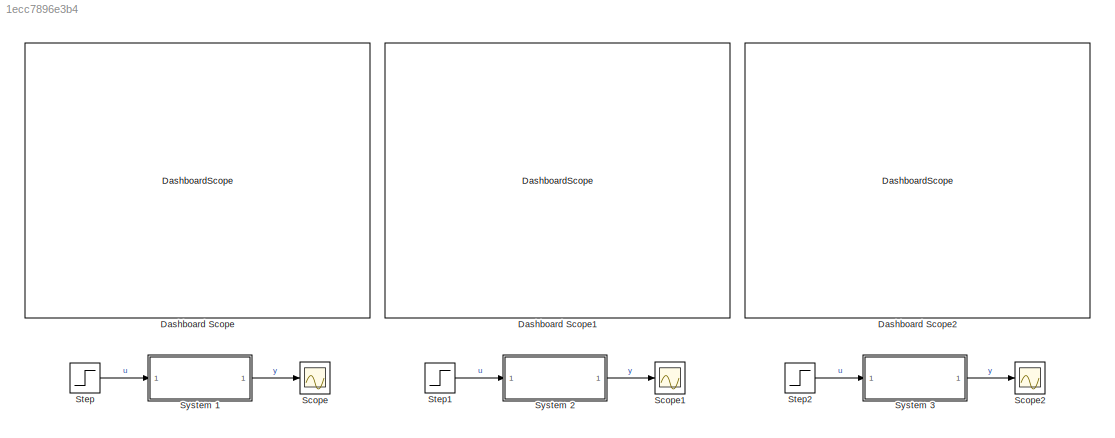
MODEL slx_1ecc7896e3b4
KIND model
CONFIG AbsTol = auto
CONFIG EnableMultiTasking = off
CONFIG FixedStep = auto
CONFIG MaxStep = auto
CONFIG MinStep = auto
CONFIG RelTol = 1e-3
CONFIG SampleTimeConstraint = Unconstrained
CONFIG SolverName = VariableStepAuto
CONFIG StartTime = 0.0
CONFIG StopTime = 10.0
BLOCK [DashboardScope] Dashboard Scope
BLOCK [DashboardScope] Dashboard Scope1
BLOCK [DashboardScope] Dashboard Scope2
BLOCK [Scope] Scope
  Floating = off
  NumInputPorts = 1
  Ports = [1]
  ScopeSpecificationString = Simulink.scopes.TimeScopeBlockCfg('CurrentConfiguration', extmgr.ConfigurationSet(extmgr.Configuration('Core','General UI',true),extmgr.Configuration('Core','Source UI',true),extmgr.Configuration('Sources','WiredSimulink',true),extmgr.Configuration('Visuals','Time Domain',true),extmgr.Configuration('Tools','Plot Navigation',true),extmgr.Configuration('Tools','Measurements',true)),'Version','2022a'...<+1ch>
BLOCK [Scope] Scope1
  Floating = off
  NumInputPorts = 1
  Ports = [1]
  ScopeSpecificationString = Simulink.scopes.TimeScopeBlockCfg('CurrentConfiguration', extmgr.ConfigurationSet(extmgr.Configuration('Core','General UI',true),extmgr.Configuration('Core','Source UI',true),extmgr.Configuration('Sources','WiredSimulink',true,'DataLoggingVariableName','ScopeData1'),extmgr.Configuration('Visuals','Time Domain',true),extmgr.Configuration('Tools','Plot Navigation',true),extmgr.Configuration('Tools',...<+40ch>
BLOCK [Scope] Scope2
  Floating = off
  NumInputPorts = 1
  Ports = [1]
  ScopeSpecificationString = Simulink.scopes.TimeScopeBlockCfg('CurrentConfiguration', extmgr.ConfigurationSet(extmgr.Configuration('Core','General UI',true),extmgr.Configuration('Core','Source UI',true),extmgr.Configuration('Sources','WiredSimulink',true,'DataLoggingVariableName','ScopeData1'),extmgr.Configuration('Visuals','Time Domain',true),extmgr.Configuration('Tools','Plot Navigation',true),extmgr.Configuration('Tools',...<+40ch>
BLOCK [Step] Step
  SampleTime = 0
BLOCK [Step] Step1
  SampleTime = 0
BLOCK [Step] Step2
  SampleTime = 0
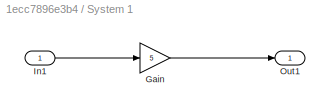
BLOCK [SubSystem] System 1
  Ports = [1, 1]
  RequestExecContextInheritance = off
BLOCK [Gain] System 1/Gain
  Gain = 5
BLOCK [Inport] System 1/In1
BLOCK [Outport] System 1/Out1
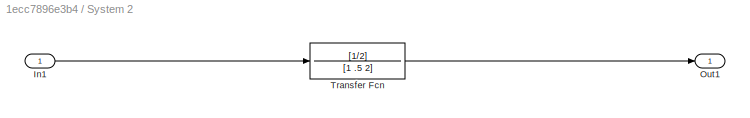
BLOCK [SubSystem] System 2
  Ports = [1, 1]
  RequestExecContextInheritance = off
BLOCK [Inport] System 2/In1
BLOCK [Outport] System 2/Out1
BLOCK [TransferFcn] System 2/Transfer Fcn
  Denominator = [1 .5 2]
  Numerator = [1/2]
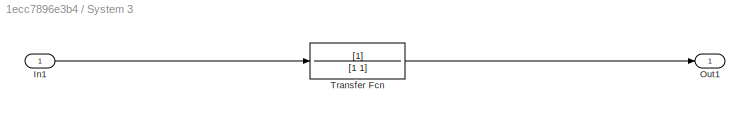
BLOCK [SubSystem] System 3
  Ports = [1, 1]
  RequestExecContextInheritance = off
BLOCK [Inport] System 3/In1
BLOCK [Outport] System 3/Out1
BLOCK [TransferFcn] System 3/Transfer Fcn
LINE Step1:1 -> System 2:1
LINE Step2:1 -> System 3:1
LINE Step:1 -> System 1:1
LINE System 1/Gain:1 -> System 1/Out1:1
LINE System 1/In1:1 -> System 1/Gain:1
LINE System 1:1 -> Scope:1
LINE System 2/In1:1 -> System 2/Transfer Fcn:1
LINE System 2/Transfer Fcn:1 -> System 2/Out1:1
LINE System 2:1 -> Scope1:1
LINE System 3/In1:1 -> System 3/Transfer Fcn:1
LINE System 3/Transfer Fcn:1 -> System 3/Out1:1
LINE System 3:1 -> Scope2:1
